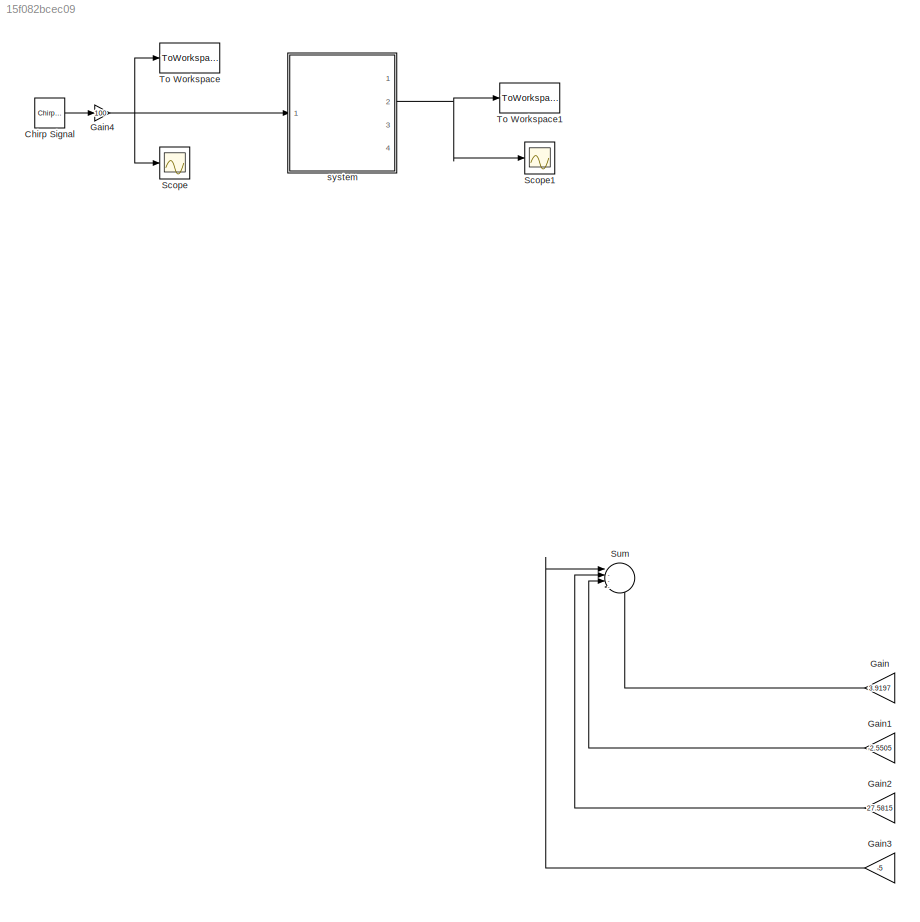
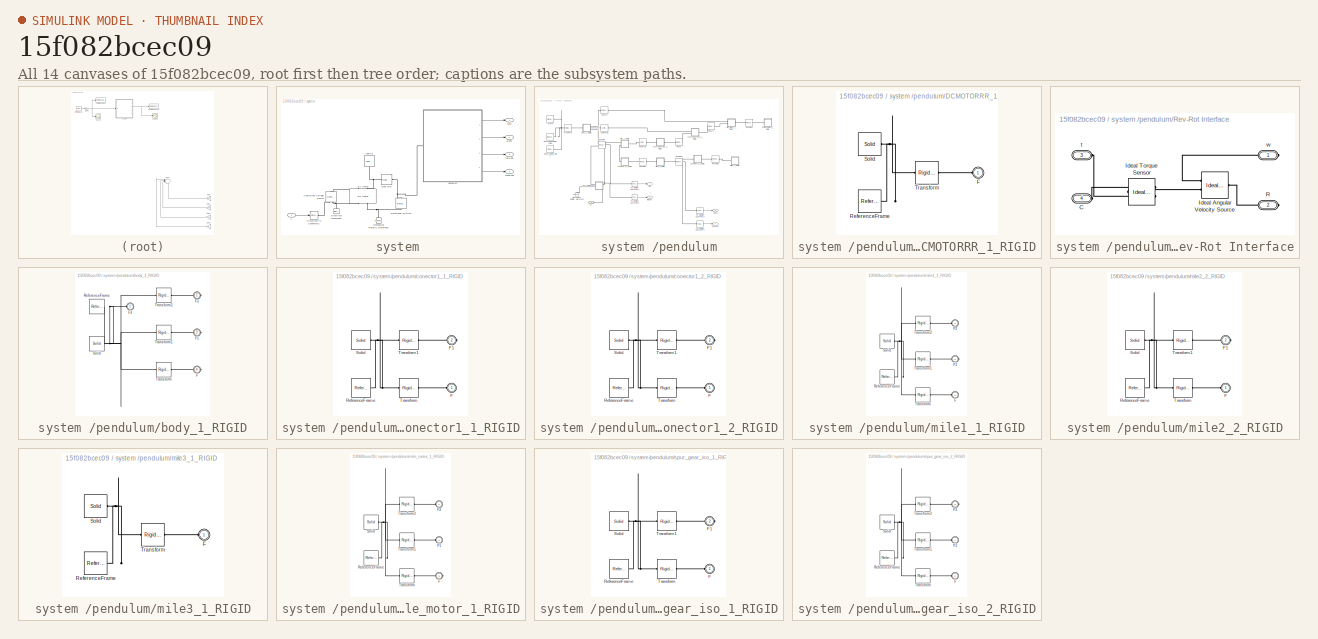
[diagram: thumbnail index - all 14 canvases of the model, root first then tree order]
MODEL slx_15f082bcec09
KIND model
CONFIG AbsTol = auto
CONFIG FixedStep = auto
CONFIG MaxStep = auto
CONFIG MinStep = auto
CONFIG RelTol = 1e-3
CONFIG SampleTimeConstraint = Unconstrained
CONFIG Solver = VariableStepAuto
CONFIG SolverMode = Auto
CONFIG SolverName = VariableStepAuto
CONFIG StartTime = 0.0
CONFIG StopTime = 100
WORKSPACE source: external: MATLAB File  (data not in archive)
BLOCK [Reference] Chirp Signal  REF=simulink/Sources/Chirp Signal
  Ports = [0, 1]
  SourceBlock = simulink/Sources/Chirp Signal
  SourceType = chirp
BLOCK [Gain] Gain
  Gain = 3.9197
  OutDataTypeStr = Inherit: Inherit via internal rule
  ParamDataTypeStr = Inherit: Inherit via internal rule
  SaturateOnIntegerOverflow = off
BLOCK [Gain] Gain1
  Gain = -2.5505
  OutDataTypeStr = Inherit: Inherit via internal rule
  ParamDataTypeStr = Inherit: Inherit via internal rule
  SaturateOnIntegerOverflow = off
BLOCK [Gain] Gain2
  Gain = 27.5815
  OutDataTypeStr = Inherit: Inherit via internal rule
  ParamDataTypeStr = Inherit: Inherit via internal rule
  SaturateOnIntegerOverflow = off
BLOCK [Gain] Gain3
  Gain = -5
  OutDataTypeStr = Inherit: Inherit via internal rule
  ParamDataTypeStr = Inherit: Inherit via internal rule
  SaturateOnIntegerOverflow = off
BLOCK [Gain] Gain4
  Gain = 100
  OutDataTypeStr = Inherit: Inherit via internal rule
  ParamDataTypeStr = Inherit: Inherit via internal rule
  SaturateOnIntegerOverflow = off
BLOCK [Scope] Scope
  Ports = [1]
  ScopeSpecificationString = Simulink.scopes.TimeScopeBlockCfg('CurrentConfiguration', extmgr.ConfigurationSet(extmgr.Configuration('Core','General UI',true),extmgr.Configuration('Core','Source UI',true),extmgr.Configuration('Sources','WiredSimulink',true),extmgr.Configuration('Visuals','Time Domain',true,'SerializedDisplays',{struct('MinYLimReal','-125.00000','MaxYLimReal','125.00000','YLabelReal','','MinYLimMag',' 0.00000',...<+1339ch>
BLOCK [Scope] Scope1
  Ports = [1]
  ScopeSpecificationString = Simulink.scopes.TimeScopeBlockCfg('CurrentConfiguration', extmgr.ConfigurationSet(extmgr.Configuration('Core','General UI',true),extmgr.Configuration('Core','Source UI',true),extmgr.Configuration('Sources','WiredSimulink',true,'DataLoggingVariableName','ScopeData1'),extmgr.Configuration('Visuals','Time Domain',true,'SerializedDisplays',{struct('MinYLimReal','-24.97966','MaxYLimReal','56.24314','YL...<+1374ch>
BLOCK [Sum] Sum
  IconShape = round
  InputSameDT = off
  Inputs = |----
  OutDataTypeStr = Inherit: Inherit via internal rule
  Ports = [4, 1]
  SaturateOnIntegerOverflow = off
BLOCK [ToWorkspace] To Workspace
  FixptAsFi = on
  MaxDataPoints = inf
  Ports = [1]
  SampleTime = -1
  Save2DSignal = 3-D array (concatenate along third dimension)
  SaveFormat = Timeseries
  VariableName = X
BLOCK [ToWorkspace] To Workspace1
  FixptAsFi = on
  MaxDataPoints = inf
  Ports = [1]
  SampleTime = -1
  Save2DSignal = 3-D array (concatenate along third dimension)
  SaveFormat = Timeseries
  VariableName = y
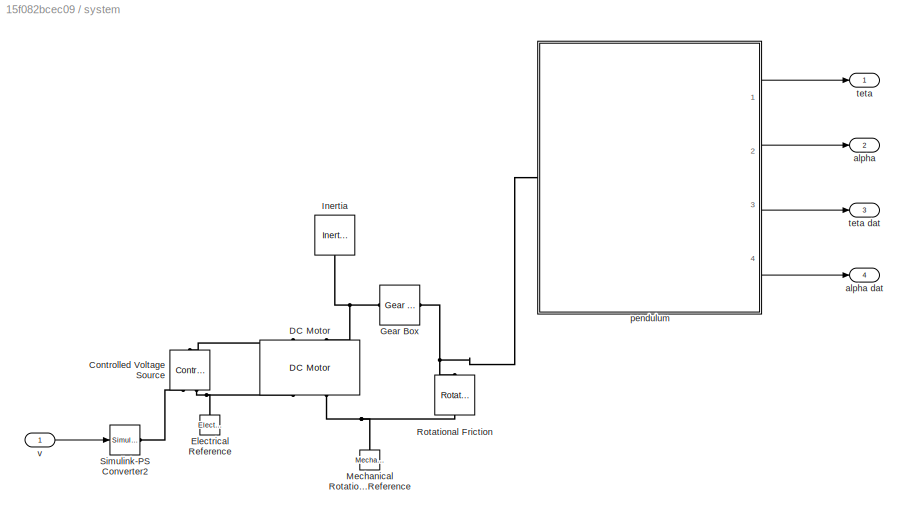
BLOCK [SubSystem] system 
  Ports = [1, 4]
  RequestExecContextInheritance = off
  Variant = off
BLOCK [Reference] system /Controlled Voltage Source  REF=fl_lib/Electrical/Electrical Sources/Controlled Voltage
Source
  Ports = [0, 0, 0, 0, 0, 1, 2]
  SourceBlock = fl_lib/Electrical/Electrical Sources/Controlled Voltage\nSource
  SourceType = Controlled Voltage\nSource
BLOCK [Reference] system /DC Motor  REF=elec_lib/Actuators & Drivers/Rotational Actuators/DC Motor
  Ports = [0, 0, 0, 0, 0, 2, 2]
  SourceBlock = elec_lib/Actuators & Drivers/Rotational Actuators/DC Motor
  SourceType = DC Motor
BLOCK [Reference] system /Electrical Reference  REF=fl_lib/Electrical/Electrical Elements/Electrical Reference
  Ports = [0, 0, 0, 0, 0, 1]
  SourceBlock = fl_lib/Electrical/Electrical Elements/Electrical Reference
  SourceType = Electrical Reference
BLOCK [Reference] system /Gear Box  REF=fl_lib/Mechanical/Mechanisms/Gear Box
  Ports = [0, 0, 0, 0, 0, 1, 1]
  SourceBlock = fl_lib/Mechanical/Mechanisms/Gear Box
  SourceType = Gear Box
BLOCK [Reference] system /Inertia  REF=fl_lib/Mechanical/Rotational Elements/Inertia
  Ports = [0, 0, 0, 0, 0, 1]
  SourceBlock = fl_lib/Mechanical/Rotational Elements/Inertia
  SourceType = Inertia
BLOCK [Reference] system /Mechanical Rotational Reference  REF=fl_lib/Mechanical/Rotational Elements/Mechanical
Rotational Reference
  Ports = [0, 0, 0, 0, 0, 1]
  SourceBlock = fl_lib/Mechanical/Rotational Elements/Mechanical\nRotational Reference
  SourceType = Mechanical\nRotational Reference
BLOCK [Reference] system /Rotational Friction  REF=fl_lib/Mechanical/Rotational Elements/Rotational Friction
  Ports = [0, 0, 0, 0, 0, 1, 1]
  SourceBlock = fl_lib/Mechanical/Rotational Elements/Rotational Friction
  SourceType = Rotational Friction
BLOCK [Reference] system /Simulink-PS Converter2  REF=nesl_utility/Simulink-PS
Converter
  Ports = [1, 0, 0, 0, 0, 0, 1]
  SourceBlock = nesl_utility/Simulink-PS\nConverter
  SourceType = Simulink-PS\nConverter
BLOCK [Outport] system /alpha
  IconDisplay = Port number
  Port = 2
BLOCK [Outport] system /alpha dat
  IconDisplay = Port number
  Port = 4
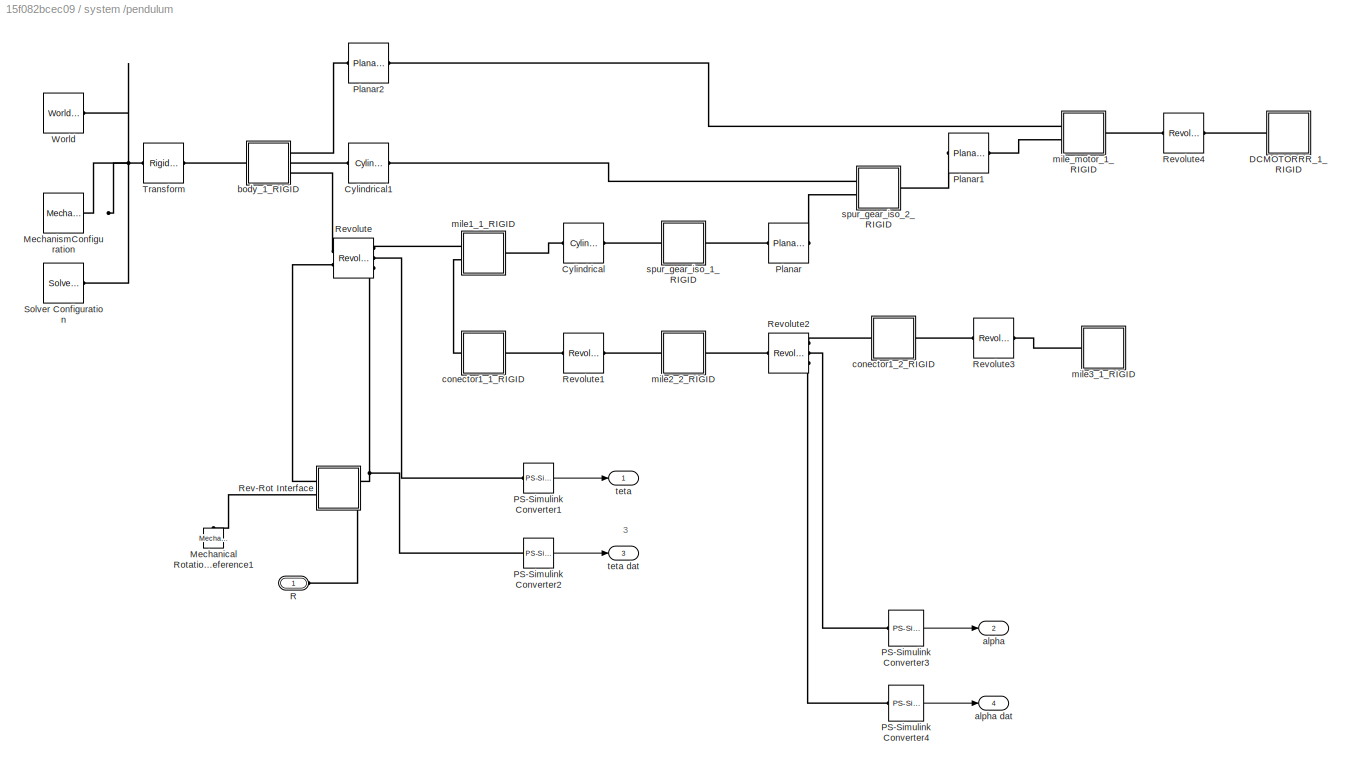
BLOCK [SubSystem] system /pendulum
  Ports = [0, 4, 0, 0, 0, 1]
  RequestExecContextInheritance = off
  Variant = off
BLOCK [Reference] system /pendulum/Cylindrical  REF=sm_lib/Joints/Cylindrical
Joint
  Ports = [0, 0, 0, 0, 0, 1, 1]
  SourceBlock = sm_lib/Joints/Cylindrical\nJoint
  SourceType = Cylindrical\nJoint
BLOCK [Reference] system /pendulum/Cylindrical1  REF=sm_lib/Joints/Cylindrical
Joint
  Ports = [0, 0, 0, 0, 0, 1, 1]
  SourceBlock = sm_lib/Joints/Cylindrical\nJoint
  SourceType = Cylindrical\nJoint
BLOCK [SubSystem] system /pendulum/DCMOTORRR_1_RIGID
  Ports = [0, 0, 0, 0, 0, 1]
  RequestExecContextInheritance = off
  Variant = off
BLOCK [PMIOPort] system /pendulum/DCMOTORRR_1_RIGID/F
  Port = 1
  Side = Left
BLOCK [Reference] system /pendulum/DCMOTORRR_1_RIGID/ReferenceFrame  REF=sm_lib/Frames and
Transforms/Reference
Frame
  Ports = [0, 0, 0, 0, 0, 0, 1]
  SourceBlock = sm_lib/Frames and\nTransforms/Reference\nFrame
  SourceType = Reference\nFrame
BLOCK [Reference] system /pendulum/DCMOTORRR_1_RIGID/Solid  REF=sm_lib/Body Elements/Solid
  Ports = [0, 0, 0, 0, 0, 0, 1]
  SourceBlock = sm_lib/Body Elements/Solid
  SourceType = Solid
BLOCK [Reference] system /pendulum/DCMOTORRR_1_RIGID/Transform  REF=sm_lib/Frames and
Transforms/Rigid
Transform
  Ports = [0, 0, 0, 0, 0, 1, 1]
  SourceBlock = sm_lib/Frames and\nTransforms/Rigid\nTransform
  SourceType = Rigid\nTransform
BLOCK [Reference] system /pendulum/Mechanical Rotational Reference1  REF=fl_lib/Mechanical/Rotational Elements/Mechanical
Rotational Reference
  Ports = [0, 0, 0, 0, 0, 1]
  SourceBlock = fl_lib/Mechanical/Rotational Elements/Mechanical\nRotational Reference
  SourceType = Mechanical\nRotational Reference
BLOCK [Reference] system /pendulum/MechanismConfiguration  REF=sm_lib/Utilities/Mechanism
Configuration
  Ports = [0, 0, 0, 0, 0, 0, 1]
  SourceBlock = sm_lib/Utilities/Mechanism\nConfiguration
  SourceType = Mechanism\nConfiguration
BLOCK [Reference] system /pendulum/PS-Simulink Converter1  REF=nesl_utility/PS-Simulink
Converter
  Ports = [0, 1, 0, 0, 0, 1]
  SourceBlock = nesl_utility/PS-Simulink\nConverter
  SourceType = PS-Simulink\nConverter
BLOCK [Reference] system /pendulum/PS-Simulink Converter2  REF=nesl_utility/PS-Simulink
Converter
  Ports = [0, 1, 0, 0, 0, 1]
  SourceBlock = nesl_utility/PS-Simulink\nConverter
  SourceType = PS-Simulink\nConverter
BLOCK [Reference] system /pendulum/PS-Simulink Converter3  REF=nesl_utility/PS-Simulink
Converter
  Ports = [0, 1, 0, 0, 0, 1]
  SourceBlock = nesl_utility/PS-Simulink\nConverter
  SourceType = PS-Simulink\nConverter
BLOCK [Reference] system /pendulum/PS-Simulink Converter4  REF=nesl_utility/PS-Simulink
Converter
  Ports = [0, 1, 0, 0, 0, 1]
  SourceBlock = nesl_utility/PS-Simulink\nConverter
  SourceType = PS-Simulink\nConverter
BLOCK [Reference] system /pendulum/Planar  REF=sm_lib/Joints/Planar Joint
  Ports = [0, 0, 0, 0, 0, 1, 1]
  SourceBlock = sm_lib/Joints/Planar Joint
  SourceType = Planar Joint
BLOCK [Reference] system /pendulum/Planar1  REF=sm_lib/Joints/Planar Joint
  Ports = [0, 0, 0, 0, 0, 1, 1]
  SourceBlock = sm_lib/Joints/Planar Joint
  SourceType = Planar Joint
BLOCK [Reference] system /pendulum/Planar2  REF=sm_lib/Joints/Planar Joint
  Ports = [0, 0, 0, 0, 0, 1, 1]
  SourceBlock = sm_lib/Joints/Planar Joint
  SourceType = Planar Joint
BLOCK [PMIOPort] system /pendulum/R 
  Port = 1
  Side = Left
BLOCK [SubSystem] system /pendulum/Rev-Rot Interface
  Ports = [0, 0, 0, 0, 0, 2, 2]
  RequestExecContextInheritance = off
  Variant = off
BLOCK [PMIOPort] system /pendulum/Rev-Rot Interface/C
  Port = 4
  Side = Left
BLOCK [Reference] system /pendulum/Rev-Rot Interface/Ideal Angular Velocity Source  REF=fl_lib/Mechanical/Mechanical Sources/Ideal Angular
Velocity Source
  Ports = [0, 0, 0, 0, 0, 1, 2]
  SourceBlock = fl_lib/Mechanical/Mechanical Sources/Ideal Angular\nVelocity Source
  SourceType = Ideal Angular\nVelocity Source
BLOCK [Reference] system /pendulum/Rev-Rot Interface/Ideal Torque Sensor  REF=fl_lib/Mechanical/Mechanical Sensors/Ideal Torque Sensor
  Ports = [0, 0, 0, 0, 0, 1, 2]
  SourceBlock = fl_lib/Mechanical/Mechanical Sensors/Ideal Torque Sensor
  SourceType = Ideal Torque Sensor
BLOCK [PMIOPort] system /pendulum/Rev-Rot Interface/R
  Port = 2
  Side = Right
BLOCK [PMIOPort] system /pendulum/Rev-Rot Interface/t
  Port = 3
  Side = Left
BLOCK [PMIOPort] system /pendulum/Rev-Rot Interface/w
  Port = 1
  Side = Right
BLOCK [Reference] system /pendulum/Revolute  REF=sm_lib/Joints/Revolute Joint
  Ports = [0, 0, 0, 0, 0, 2, 3]
  SourceBlock = sm_lib/Joints/Revolute Joint
  SourceType = Revolute Joint
BLOCK [Reference] system /pendulum/Revolute1  REF=sm_lib/Joints/Revolute Joint
  Ports = [0, 0, 0, 0, 0, 1, 1]
  SourceBlock = sm_lib/Joints/Revolute Joint
  SourceType = Revolute Joint
BLOCK [Reference] system /pendulum/Revolute2  REF=sm_lib/Joints/Revolute Joint
  Ports = [0, 0, 0, 0, 0, 1, 3]
  SourceBlock = sm_lib/Joints/Revolute Joint
  SourceType = Revolute Joint
BLOCK [Reference] system /pendulum/Revolute3  REF=sm_lib/Joints/Revolute Joint
  Ports = [0, 0, 0, 0, 0, 1, 1]
  SourceBlock = sm_lib/Joints/Revolute Joint
  SourceType = Revolute Joint
BLOCK [Reference] system /pendulum/Revolute4  REF=sm_lib/Joints/Revolute Joint
  Ports = [0, 0, 0, 0, 0, 1, 1]
  SourceBlock = sm_lib/Joints/Revolute Joint
  SourceType = Revolute Joint
BLOCK [Reference] system /pendulum/Solver Configuration  REF=nesl_utility/Solver
Configuration
  Ports = [0, 0, 0, 0, 0, 0, 1]
  SourceBlock = nesl_utility/Solver\nConfiguration
  SourceType = Solver\nConfiguration
BLOCK [Reference] system /pendulum/Transform  REF=sm_lib/Frames and
Transforms/Rigid
Transform
  Ports = [0, 0, 0, 0, 0, 1, 1]
  SourceBlock = sm_lib/Frames and\nTransforms/Rigid\nTransform
  SourceType = Rigid\nTransform
BLOCK [Reference] system /pendulum/World  REF=sm_lib/Frames and
Transforms/World Frame
  Ports = [0, 0, 0, 0, 0, 0, 1]
  SourceBlock = sm_lib/Frames and\nTransforms/World Frame
  SourceType = World Frame
BLOCK [Outport] system /pendulum/alpha 
  IconDisplay = Port number
  Port = 2
BLOCK [Outport] system /pendulum/alpha dat 
  IconDisplay = Port number
  Port = 4
BLOCK [SubSystem] system /pendulum/body_1_RIGID
  Ports = [0, 0, 0, 0, 0, 1, 3]
  RequestExecContextInheritance = off
  Variant = off
BLOCK [PMIOPort] system /pendulum/body_1_RIGID/F
  Port = 4
  Side = Right
BLOCK [PMIOPort] system /pendulum/body_1_RIGID/F1
  Port = 3
  Side = Right
BLOCK [PMIOPort] system /pendulum/body_1_RIGID/F2
  Port = 2
  Side = Right
BLOCK [PMIOPort] system /pendulum/body_1_RIGID/F3
  Port = 1
  Side = Left
BLOCK [Reference] system /pendulum/body_1_RIGID/ReferenceFrame  REF=sm_lib/Frames and
Transforms/Reference
Frame
  Ports = [0, 0, 0, 0, 0, 0, 1]
  SourceBlock = sm_lib/Frames and\nTransforms/Reference\nFrame
  SourceType = Reference\nFrame
BLOCK [Reference] system /pendulum/body_1_RIGID/Solid  REF=sm_lib/Body Elements/Solid
  Ports = [0, 0, 0, 0, 0, 0, 1]
  SourceBlock = sm_lib/Body Elements/Solid
  SourceType = Solid
BLOCK [Reference] system /pendulum/body_1_RIGID/Transform  REF=sm_lib/Frames and
Transforms/Rigid
Transform
  Ports = [0, 0, 0, 0, 0, 1, 1]
  SourceBlock = sm_lib/Frames and\nTransforms/Rigid\nTransform
  SourceType = Rigid\nTransform
BLOCK [Reference] system /pendulum/body_1_RIGID/Transform1  REF=sm_lib/Frames and
Transforms/Rigid
Transform
  Ports = [0, 0, 0, 0, 0, 1, 1]
  SourceBlock = sm_lib/Frames and\nTransforms/Rigid\nTransform
  SourceType = Rigid\nTransform
BLOCK [Reference] system /pendulum/body_1_RIGID/Transform2  REF=sm_lib/Frames and
Transforms/Rigid
Transform
  Ports = [0, 0, 0, 0, 0, 1, 1]
  SourceBlock = sm_lib/Frames and\nTransforms/Rigid\nTransform
  SourceType = Rigid\nTransform
BLOCK [SubSystem] system /pendulum/conector1_1_RIGID
  Ports = [0, 0, 0, 0, 0, 1, 1]
  RequestExecContextInheritance = off
  Variant = off
BLOCK [PMIOPort] system /pendulum/conector1_1_RIGID/F
  Port = 1
  Side = Left
BLOCK [PMIOPort] system /pendulum/conector1_1_RIGID/F1
  Port = 2
  Side = Right
BLOCK [Reference] system /pendulum/conector1_1_RIGID/ReferenceFrame  REF=sm_lib/Frames and
Transforms/Reference
Frame
  Ports = [0, 0, 0, 0, 0, 0, 1]
  SourceBlock = sm_lib/Frames and\nTransforms/Reference\nFrame
  SourceType = Reference\nFrame
BLOCK [Reference] system /pendulum/conector1_1_RIGID/Solid  REF=sm_lib/Body Elements/Solid
  Ports = [0, 0, 0, 0, 0, 0, 1]
  SourceBlock = sm_lib/Body Elements/Solid
  SourceType = Solid
BLOCK [Reference] system /pendulum/conector1_1_RIGID/Transform  REF=sm_lib/Frames and
Transforms/Rigid
Transform
  Ports = [0, 0, 0, 0, 0, 1, 1]
  SourceBlock = sm_lib/Frames and\nTransforms/Rigid\nTransform
  SourceType = Rigid\nTransform
BLOCK [Reference] system /pendulum/conector1_1_RIGID/Transform1  REF=sm_lib/Frames and
Transforms/Rigid
Transform
  Ports = [0, 0, 0, 0, 0, 1, 1]
  SourceBlock = sm_lib/Frames and\nTransforms/Rigid\nTransform
  SourceType = Rigid\nTransform
BLOCK [SubSystem] system /pendulum/conector1_2_RIGID
  Ports = [0, 0, 0, 0, 0, 1, 1]
  RequestExecContextInheritance = off
  Variant = off
BLOCK [PMIOPort] system /pendulum/conector1_2_RIGID/F
  Port = 1
  Side = Left
BLOCK [PMIOPort] system /pendulum/conector1_2_RIGID/F1
  Port = 2
  Side = Right
BLOCK [Reference] system /pendulum/conector1_2_RIGID/ReferenceFrame  REF=sm_lib/Frames and
Transforms/Reference
Frame
  Ports = [0, 0, 0, 0, 0, 0, 1]
  SourceBlock = sm_lib/Frames and\nTransforms/Reference\nFrame
  SourceType = Reference\nFrame
BLOCK [Reference] system /pendulum/conector1_2_RIGID/Solid  REF=sm_lib/Body Elements/Solid
  Ports = [0, 0, 0, 0, 0, 0, 1]
  SourceBlock = sm_lib/Body Elements/Solid
  SourceType = Solid
BLOCK [Reference] system /pendulum/conector1_2_RIGID/Transform  REF=sm_lib/Frames and
Transforms/Rigid
Transform
  Ports = [0, 0, 0, 0, 0, 1, 1]
  SourceBlock = sm_lib/Frames and\nTransforms/Rigid\nTransform
  SourceType = Rigid\nTransform
BLOCK [Reference] system /pendulum/conector1_2_RIGID/Transform1  REF=sm_lib/Frames and
Transforms/Rigid
Transform
  Ports = [0, 0, 0, 0, 0, 1, 1]
  SourceBlock = sm_lib/Frames and\nTransforms/Rigid\nTransform
  SourceType = Rigid\nTransform
BLOCK [SubSystem] system /pendulum/mile1_1_RIGID
  Ports = [0, 0, 0, 0, 0, 2, 1]
  RequestExecContextInheritance = off
  Variant = off
BLOCK [PMIOPort] system /pendulum/mile1_1_RIGID/F
  Port = 2
  Side = Left
BLOCK [PMIOPort] system /pendulum/mile1_1_RIGID/F1
  Port = 3
  Side = Right
BLOCK [PMIOPort] system /pendulum/mile1_1_RIGID/F2
  Port = 1
  Side = Left
BLOCK [Reference] system /pendulum/mile1_1_RIGID/ReferenceFrame  REF=sm_lib/Frames and
Transforms/Reference
Frame
  Ports = [0, 0, 0, 0, 0, 0, 1]
  SourceBlock = sm_lib/Frames and\nTransforms/Reference\nFrame
  SourceType = Reference\nFrame
BLOCK [Reference] system /pendulum/mile1_1_RIGID/Solid  REF=sm_lib/Body Elements/Solid
  Ports = [0, 0, 0, 0, 0, 0, 1]
  SourceBlock = sm_lib/Body Elements/Solid
  SourceType = Solid
BLOCK [Reference] system /pendulum/mile1_1_RIGID/Transform  REF=sm_lib/Frames and
Transforms/Rigid
Transform
  Ports = [0, 0, 0, 0, 0, 1, 1]
  SourceBlock = sm_lib/Frames and\nTransforms/Rigid\nTransform
  SourceType = Rigid\nTransform
BLOCK [Reference] system /pendulum/mile1_1_RIGID/Transform1  REF=sm_lib/Frames and
Transforms/Rigid
Transform
  Ports = [0, 0, 0, 0, 0, 1, 1]
  SourceBlock = sm_lib/Frames and\nTransforms/Rigid\nTransform
  SourceType = Rigid\nTransform
BLOCK [Reference] system /pendulum/mile1_1_RIGID/Transform2  REF=sm_lib/Frames and
Transforms/Rigid
Transform
  Ports = [0, 0, 0, 0, 0, 1, 1]
  SourceBlock = sm_lib/Frames and\nTransforms/Rigid\nTransform
  SourceType = Rigid\nTransform
BLOCK [SubSystem] system /pendulum/mile2_2_RIGID
  Ports = [0, 0, 0, 0, 0, 1, 1]
  RequestExecContextInheritance = off
  Variant = off
BLOCK [PMIOPort] system /pendulum/mile2_2_RIGID/F
  Port = 1
  Side = Left
BLOCK [PMIOPort] system /pendulum/mile2_2_RIGID/F1
  Port = 2
  Side = Right
BLOCK [Reference] system /pendulum/mile2_2_RIGID/ReferenceFrame  REF=sm_lib/Frames and
Transforms/Reference
Frame
  Ports = [0, 0, 0, 0, 0, 0, 1]
  SourceBlock = sm_lib/Frames and\nTransforms/Reference\nFrame
  SourceType = Reference\nFrame
BLOCK [Reference] system /pendulum/mile2_2_RIGID/Solid  REF=sm_lib/Body Elements/Solid
  Ports = [0, 0, 0, 0, 0, 0, 1]
  SourceBlock = sm_lib/Body Elements/Solid
  SourceType = Solid
BLOCK [Reference] system /pendulum/mile2_2_RIGID/Transform  REF=sm_lib/Frames and
Transforms/Rigid
Transform
  Ports = [0, 0, 0, 0, 0, 1, 1]
  SourceBlock = sm_lib/Frames and\nTransforms/Rigid\nTransform
  SourceType = Rigid\nTransform
BLOCK [Reference] system /pendulum/mile2_2_RIGID/Transform1  REF=sm_lib/Frames and
Transforms/Rigid
Transform
  Ports = [0, 0, 0, 0, 0, 1, 1]
  SourceBlock = sm_lib/Frames and\nTransforms/Rigid\nTransform
  SourceType = Rigid\nTransform
BLOCK [SubSystem] system /pendulum/mile3_1_RIGID
  Ports = [0, 0, 0, 0, 0, 1]
  RequestExecContextInheritance = off
  Variant = off
BLOCK [PMIOPort] system /pendulum/mile3_1_RIGID/F
  Port = 1
  Side = Left
BLOCK [Reference] system /pendulum/mile3_1_RIGID/ReferenceFrame  REF=sm_lib/Frames and
Transforms/Reference
Frame
  Ports = [0, 0, 0, 0, 0, 0, 1]
  SourceBlock = sm_lib/Frames and\nTransforms/Reference\nFrame
  SourceType = Reference\nFrame
BLOCK [Reference] system /pendulum/mile3_1_RIGID/Solid  REF=sm_lib/Body Elements/Solid
  Ports = [0, 0, 0, 0, 0, 0, 1]
  SourceBlock = sm_lib/Body Elements/Solid
  SourceType = Solid
BLOCK [Reference] system /pendulum/mile3_1_RIGID/Transform  REF=sm_lib/Frames and
Transforms/Rigid
Transform
  Ports = [0, 0, 0, 0, 0, 1, 1]
  SourceBlock = sm_lib/Frames and\nTransforms/Rigid\nTransform
  SourceType = Rigid\nTransform
BLOCK [SubSystem] system /pendulum/mile_motor_1_RIGID
  Ports = [0, 0, 0, 0, 0, 2, 1]
  RequestExecContextInheritance = off
  Variant = off
BLOCK [PMIOPort] system /pendulum/mile_motor_1_RIGID/F
  Port = 3
  Side = Right
BLOCK [PMIOPort] system /pendulum/mile_motor_1_RIGID/F1
  Port = 2
  Side = Left
BLOCK [PMIOPort] system /pendulum/mile_motor_1_RIGID/F2
  Port = 1
  Side = Left
BLOCK [Reference] system /pendulum/mile_motor_1_RIGID/ReferenceFrame  REF=sm_lib/Frames and
Transforms/Reference
Frame
  Ports = [0, 0, 0, 0, 0, 0, 1]
  SourceBlock = sm_lib/Frames and\nTransforms/Reference\nFrame
  SourceType = Reference\nFrame
BLOCK [Reference] system /pendulum/mile_motor_1_RIGID/Solid  REF=sm_lib/Body Elements/Solid
  Ports = [0, 0, 0, 0, 0, 0, 1]
  SourceBlock = sm_lib/Body Elements/Solid
  SourceType = Solid
BLOCK [Reference] system /pendulum/mile_motor_1_RIGID/Transform  REF=sm_lib/Frames and
Transforms/Rigid
Transform
  Ports = [0, 0, 0, 0, 0, 1, 1]
  SourceBlock = sm_lib/Frames and\nTransforms/Rigid\nTransform
  SourceType = Rigid\nTransform
BLOCK [Reference] system /pendulum/mile_motor_1_RIGID/Transform1  REF=sm_lib/Frames and
Transforms/Rigid
Transform
  Ports = [0, 0, 0, 0, 0, 1, 1]
  SourceBlock = sm_lib/Frames and\nTransforms/Rigid\nTransform
  SourceType = Rigid\nTransform
BLOCK [Reference] system /pendulum/mile_motor_1_RIGID/Transform2  REF=sm_lib/Frames and
Transforms/Rigid
Transform
  Ports = [0, 0, 0, 0, 0, 1, 1]
  SourceBlock = sm_lib/Frames and\nTransforms/Rigid\nTransform
  SourceType = Rigid\nTransform
BLOCK [SubSystem] system /pendulum/spur_gear_iso_1_RIGID
  Ports = [0, 0, 0, 0, 0, 1, 1]
  RequestExecContextInheritance = off
  Variant = off
BLOCK [PMIOPort] system /pendulum/spur_gear_iso_1_RIGID/F
  Port = 1
  Side = Left
BLOCK [PMIOPort] system /pendulum/spur_gear_iso_1_RIGID/F1
  Port = 2
  Side = Right
BLOCK [Reference] system /pendulum/spur_gear_iso_1_RIGID/ReferenceFrame  REF=sm_lib/Frames and
Transforms/Reference
Frame
  Ports = [0, 0, 0, 0, 0, 0, 1]
  SourceBlock = sm_lib/Frames and\nTransforms/Reference\nFrame
  SourceType = Reference\nFrame
BLOCK [Reference] system /pendulum/spur_gear_iso_1_RIGID/Solid  REF=sm_lib/Body Elements/Solid
  Ports = [0, 0, 0, 0, 0, 0, 1]
  SourceBlock = sm_lib/Body Elements/Solid
  SourceType = Solid
BLOCK [Reference] system /pendulum/spur_gear_iso_1_RIGID/Transform  REF=sm_lib/Frames and
Transforms/Rigid
Transform
  Ports = [0, 0, 0, 0, 0, 1, 1]
  SourceBlock = sm_lib/Frames and\nTransforms/Rigid\nTransform
  SourceType = Rigid\nTransform
BLOCK [Reference] system /pendulum/spur_gear_iso_1_RIGID/Transform1  REF=sm_lib/Frames and
Transforms/Rigid
Transform
  Ports = [0, 0, 0, 0, 0, 1, 1]
  SourceBlock = sm_lib/Frames and\nTransforms/Rigid\nTransform
  SourceType = Rigid\nTransform
BLOCK [SubSystem] system /pendulum/spur_gear_iso_2_RIGID
  Ports = [0, 0, 0, 0, 0, 2, 1]
  RequestExecContextInheritance = off
  Variant = off
BLOCK [PMIOPort] system /pendulum/spur_gear_iso_2_RIGID/F
  Port = 2
  Side = Left
BLOCK [PMIOPort] system /pendulum/spur_gear_iso_2_RIGID/F1
  Port = 1
  Side = Left
BLOCK [PMIOPort] system /pendulum/spur_gear_iso_2_RIGID/F2
  Port = 3
  Side = Right
BLOCK [Reference] system /pendulum/spur_gear_iso_2_RIGID/ReferenceFrame  REF=sm_lib/Frames and
Transforms/Reference
Frame
  Ports = [0, 0, 0, 0, 0, 0, 1]
  SourceBlock = sm_lib/Frames and\nTransforms/Reference\nFrame
  SourceType = Reference\nFrame
BLOCK [Reference] system /pendulum/spur_gear_iso_2_RIGID/Solid  REF=sm_lib/Body Elements/Solid
  Ports = [0, 0, 0, 0, 0, 0, 1]
  SourceBlock = sm_lib/Body Elements/Solid
  SourceType = Solid
BLOCK [Reference] system /pendulum/spur_gear_iso_2_RIGID/Transform  REF=sm_lib/Frames and
Transforms/Rigid
Transform
  Ports = [0, 0, 0, 0, 0, 1, 1]
  SourceBlock = sm_lib/Frames and\nTransforms/Rigid\nTransform
  SourceType = Rigid\nTransform
BLOCK [Reference] system /pendulum/spur_gear_iso_2_RIGID/Transform1  REF=sm_lib/Frames and
Transforms/Rigid
Transform
  Ports = [0, 0, 0, 0, 0, 1, 1]
  SourceBlock = sm_lib/Frames and\nTransforms/Rigid\nTransform
  SourceType = Rigid\nTransform
BLOCK [Reference] system /pendulum/spur_gear_iso_2_RIGID/Transform2  REF=sm_lib/Frames and
Transforms/Rigid
Transform
  Ports = [0, 0, 0, 0, 0, 1, 1]
  SourceBlock = sm_lib/Frames and\nTransforms/Rigid\nTransform
  SourceType = Rigid\nTransform
BLOCK [Outport] system /pendulum/teta 
  IconDisplay = Port number
BLOCK [Outport] system /pendulum/teta dat 
  IconDisplay = Port number
  Port = 3
BLOCK [Outport] system /teta
  IconDisplay = Port number
BLOCK [Outport] system /teta dat
  IconDisplay = Port number
  Port = 3
BLOCK [Inport] system /v 
  IconDisplay = Port number
ANNOTATION system /pendulum: 3
LINE Chirp Signal:1 -> Gain4:1
LINE Gain1:1 -> Sum:3
LINE Gain2:1 -> Sum:2
LINE Gain3:1 -> Sum:1
NET Gain4:1 -> Scope:1, To Workspace:1, system :1
LINE Gain:1 -> Sum:4
LINE system /pendulum/PS-Simulink Converter1:1 -> system /pendulum/teta :1
LINE system /pendulum/PS-Simulink Converter2:1 -> system /pendulum/teta dat :1
LINE system /pendulum/PS-Simulink Converter3:1 -> system /pendulum/alpha :1
LINE system /pendulum/PS-Simulink Converter4:1 -> system /pendulum/alpha dat :1
LINE system /pendulum:1 -> system /teta:1
LINE system /pendulum:2 -> system /alpha:1
LINE system /pendulum:3 -> system /teta dat:1
LINE system /pendulum:4 -> system /alpha dat:1
LINE system /v :1 -> system /Simulink-PS Converter2:1
NET system :2 -> Scope1:1, To Workspace1:1
PLINE system /Controlled Voltage Source:LConn1 -- system /DC Motor:LConn1
PLINE system /Controlled Voltage Source:RConn1 -- system /Simulink-PS Converter2:RConn1
PNET net1: system /Controlled Voltage Source:RConn2 -- system /DC Motor:RConn1 -- system /Electrical Reference:LConn1
PNET net2: system /DC Motor:LConn2 -- system /Gear Box:LConn1 -- system /Inertia:LConn1
PNET net3: system /DC Motor:RConn2 -- system /Mechanical Rotational Reference:LConn1 -- system /Rotational Friction:RConn1
PNET net4: system /Gear Box:RConn1 -- system /Rotational Friction:LConn1 -- system /pendulum:LConn1
PLINE system /pendulum/Cylindrical1:LConn1 -- system /pendulum/body_1_RIGID:RConn2
PLINE system /pendulum/Cylindrical1:RConn1 -- system /pendulum/spur_gear_iso_2_RIGID:LConn1
PLINE system /pendulum/Cylindrical:LConn1 -- system /pendulum/mile1_1_RIGID:RConn1
PLINE system /pendulum/Cylindrical:RConn1 -- system /pendulum/spur_gear_iso_1_RIGID:LConn1
PLINE system /pendulum/DCMOTORRR_1_RIGID/F:RConn1 -- system /pendulum/DCMOTORRR_1_RIGID/Transform:RConn1
PNET net5: system /pendulum/DCMOTORRR_1_RIGID/ReferenceFrame:RConn1 -- system /pendulum/DCMOTORRR_1_RIGID/Solid:RConn1 -- system /pendulum/DCMOTORRR_1_RIGID/Transform:LConn1
PLINE system /pendulum/DCMOTORRR_1_RIGID:LConn1 -- system /pendulum/Revolute4:RConn1
PLINE system /pendulum/Mechanical Rotational Reference1:LConn1 -- system /pendulum/Rev-Rot Interface:LConn2
PNET net6: system /pendulum/MechanismConfiguration:RConn1 -- system /pendulum/Solver Configuration:RConn1 -- system /pendulum/Transform:LConn1 -- system /pendulum/World:RConn1
PLINE system /pendulum/PS-Simulink Converter1:LConn1 -- system /pendulum/Revolute:RConn2
PNET net7: system /pendulum/PS-Simulink Converter2:LConn1 -- system /pendulum/Rev-Rot Interface:RConn1 -- system /pendulum/Revolute:RConn3
PLINE system /pendulum/PS-Simulink Converter3:LConn1 -- system /pendulum/Revolute2:RConn2
PLINE system /pendulum/PS-Simulink Converter4:LConn1 -- system /pendulum/Revolute2:RConn3
PLINE system /pendulum/Planar1:LConn1 -- system /pendulum/spur_gear_iso_2_RIGID:RConn1
PLINE system /pendulum/Planar1:RConn1 -- system /pendulum/mile_motor_1_RIGID:LConn2
PLINE system /pendulum/Planar2:LConn1 -- system /pendulum/body_1_RIGID:RConn1
PLINE system /pendulum/Planar2:RConn1 -- system /pendulum/mile_motor_1_RIGID:LConn1
PLINE system /pendulum/Planar:LConn1 -- system /pendulum/spur_gear_iso_1_RIGID:RConn1
PLINE system /pendulum/Planar:RConn1 -- system /pendulum/spur_gear_iso_2_RIGID:LConn2
PLINE system /pendulum/R :RConn1 -- system /pendulum/Rev-Rot Interface:RConn2
PLINE system /pendulum/Rev-Rot Interface/C:RConn1 -- system /pendulum/Rev-Rot Interface/Ideal Torque Sensor:RConn1
PLINE system /pendulum/Rev-Rot Interface/Ideal Angular Velocity Source:LConn1 -- system /pendulum/Rev-Rot Interface/R:RConn1
PLINE system /pendulum/Rev-Rot Interface/Ideal Angular Velocity Source:RConn1 -- system /pendulum/Rev-Rot Interface/w:RConn1
PLINE system /pendulum/Rev-Rot Interface/Ideal Angular Velocity Source:RConn2 -- system /pendulum/Rev-Rot Interface/Ideal Torque Sensor:LConn1
PLINE system /pendulum/Rev-Rot Interface/Ideal Torque Sensor:RConn2 -- system /pendulum/Rev-Rot Interface/t:RConn1
PLINE system /pendulum/Rev-Rot Interface:LConn1 -- system /pendulum/Revolute:LConn2
PLINE system /pendulum/Revolute1:LConn1 -- system /pendulum/conector1_1_RIGID:RConn1
PLINE system /pendulum/Revolute1:RConn1 -- system /pendulum/mile2_2_RIGID:LConn1
PLINE system /pendulum/Revolute2:LConn1 -- system /pendulum/mile2_2_RIGID:RConn1
PLINE system /pendulum/Revolute2:RConn1 -- system /pendulum/conector1_2_RIGID:LConn1
PLINE system /pendulum/Revolute3:LConn1 -- system /pendulum/conector1_2_RIGID:RConn1
PLINE system /pendulum/Revolute3:RConn1 -- system /pendulum/mile3_1_RIGID:LConn1
PLINE system /pendulum/Revolute4:LConn1 -- system /pendulum/mile_motor_1_RIGID:RConn1
PLINE system /pendulum/Revolute:LConn1 -- system /pendulum/body_1_RIGID:RConn3
PLINE system /pendulum/Revolute:RConn1 -- system /pendulum/mile1_1_RIGID:LConn1
PLINE system /pendulum/Transform:RConn1 -- system /pendulum/body_1_RIGID:LConn1
PLINE system /pendulum/body_1_RIGID/F1:RConn1 -- system /pendulum/body_1_RIGID/Transform1:RConn1
PLINE system /pendulum/body_1_RIGID/F2:RConn1 -- system /pendulum/body_1_RIGID/Transform2:RConn1
PNET net8: system /pendulum/body_1_RIGID/F3:RConn1 -- system /pendulum/body_1_RIGID/ReferenceFrame:RConn1 -- system /pendulum/body_1_RIGID/Solid:RConn1 -- system /pendulum/body_1_RIGID/Transform1:LConn1 -- system /pendulum/body_1_RIGID/Transform2:LConn1 -- system /pendulum/body_1_RIGID/Transform:LConn1
PLINE system /pendulum/body_1_RIGID/F:RConn1 -- system /pendulum/body_1_RIGID/Transform:RConn1
PLINE system /pendulum/conector1_1_RIGID/F1:RConn1 -- system /pendulum/conector1_1_RIGID/Transform1:RConn1
PLINE system /pendulum/conector1_1_RIGID/F:RConn1 -- system /pendulum/conector1_1_RIGID/Transform:RConn1
PNET net9: system /pendulum/conector1_1_RIGID/ReferenceFrame:RConn1 -- system /pendulum/conector1_1_RIGID/Solid:RConn1 -- system /pendulum/conector1_1_RIGID/Transform1:LConn1 -- system /pendulum/conector1_1_RIGID/Transform:LConn1
PLINE system /pendulum/conector1_1_RIGID:LConn1 -- system /pendulum/mile1_1_RIGID:LConn2
PLINE system /pendulum/conector1_2_RIGID/F1:RConn1 -- system /pendulum/conector1_2_RIGID/Transform1:RConn1
PLINE system /pendulum/conector1_2_RIGID/F:RConn1 -- system /pendulum/conector1_2_RIGID/Transform:RConn1
PNET net10: system /pendulum/conector1_2_RIGID/ReferenceFrame:RConn1 -- system /pendulum/conector1_2_RIGID/Solid:RConn1 -- system /pendulum/conector1_2_RIGID/Transform1:LConn1 -- system /pendulum/conector1_2_RIGID/Transform:LConn1
PLINE system /pendulum/mile1_1_RIGID/F1:RConn1 -- system /pendulum/mile1_1_RIGID/Transform1:RConn1
PLINE system /pendulum/mile1_1_RIGID/F2:RConn1 -- system /pendulum/mile1_1_RIGID/Transform2:RConn1
PLINE system /pendulum/mile1_1_RIGID/F:RConn1 -- system /pendulum/mile1_1_RIGID/Transform:RConn1
PNET net11: system /pendulum/mile1_1_RIGID/ReferenceFrame:RConn1 -- system /pendulum/mile1_1_RIGID/Solid:RConn1 -- system /pendulum/mile1_1_RIGID/Transform1:LConn1 -- system /pendulum/mile1_1_RIGID/Transform2:LConn1 -- system /pendulum/mile1_1_RIGID/Transform:LConn1
PLINE system /pendulum/mile2_2_RIGID/F1:RConn1 -- system /pendulum/mile2_2_RIGID/Transform1:RConn1
PLINE system /pendulum/mile2_2_RIGID/F:RConn1 -- system /pendulum/mile2_2_RIGID/Transform:RConn1
PNET net12: system /pendulum/mile2_2_RIGID/ReferenceFrame:RConn1 -- system /pendulum/mile2_2_RIGID/Solid:RConn1 -- system /pendulum/mile2_2_RIGID/Transform1:LConn1 -- system /pendulum/mile2_2_RIGID/Transform:LConn1
PLINE system /pendulum/mile3_1_RIGID/F:RConn1 -- system /pendulum/mile3_1_RIGID/Transform:RConn1
PNET net13: system /pendulum/mile3_1_RIGID/ReferenceFrame:RConn1 -- system /pendulum/mile3_1_RIGID/Solid:RConn1 -- system /pendulum/mile3_1_RIGID/Transform:LConn1
PLINE system /pendulum/mile_motor_1_RIGID/F1:RConn1 -- system /pendulum/mile_motor_1_RIGID/Transform1:RConn1
PLINE system /pendulum/mile_motor_1_RIGID/F2:RConn1 -- system /pendulum/mile_motor_1_RIGID/Transform2:RConn1
PLINE system /pendulum/mile_motor_1_RIGID/F:RConn1 -- system /pendulum/mile_motor_1_RIGID/Transform:RConn1
PNET net14: system /pendulum/mile_motor_1_RIGID/ReferenceFrame:RConn1 -- system /pendulum/mile_motor_1_RIGID/Solid:RConn1 -- system /pendulum/mile_motor_1_RIGID/Transform1:LConn1 -- system /pendulum/mile_motor_1_RIGID/Transform2:LConn1 -- system /pendulum/mile_motor_1_RIGID/Transform:LConn1
PLINE system /pendulum/spur_gear_iso_1_RIGID/F1:RConn1 -- system /pendulum/spur_gear_iso_1_RIGID/Transform1:RConn1
PLINE system /pendulum/spur_gear_iso_1_RIGID/F:RConn1 -- system /pendulum/spur_gear_iso_1_RIGID/Transform:RConn1
PNET net15: system /pendulum/spur_gear_iso_1_RIGID/ReferenceFrame:RConn1 -- system /pendulum/spur_gear_iso_1_RIGID/Solid:RConn1 -- system /pendulum/spur_gear_iso_1_RIGID/Transform1:LConn1 -- system /pendulum/spur_gear_iso_1_RIGID/Transform:LConn1
PLINE system /pendulum/spur_gear_iso_2_RIGID/F1:RConn1 -- system /pendulum/spur_gear_iso_2_RIGID/Transform1:RConn1
PLINE system /pendulum/spur_gear_iso_2_RIGID/F2:RConn1 -- system /pendulum/spur_gear_iso_2_RIGID/Transform2:RConn1
PLINE system /pendulum/spur_gear_iso_2_RIGID/F:RConn1 -- system /pendulum/spur_gear_iso_2_RIGID/Transform:RConn1
PNET net16: system /pendulum/spur_gear_iso_2_RIGID/ReferenceFrame:RConn1 -- system /pendulum/spur_gear_iso_2_RIGID/Solid:RConn1 -- system /pendulum/spur_gear_iso_2_RIGID/Transform1:LConn1 -- system /pendulum/spur_gear_iso_2_RIGID/Transform2:LConn1 -- system /pendulum/spur_gear_iso_2_RIGID/Transform:LConn1
note: NET lines group one-source signal fan-out (src -> all destinations, sorted); 1:1 wires keep LINE; PNET lines group multi-terminal physical nets as a canonical sorted terminal list (undirected conserving connections); 2-terminal nets keep the pairwise PLINE form
